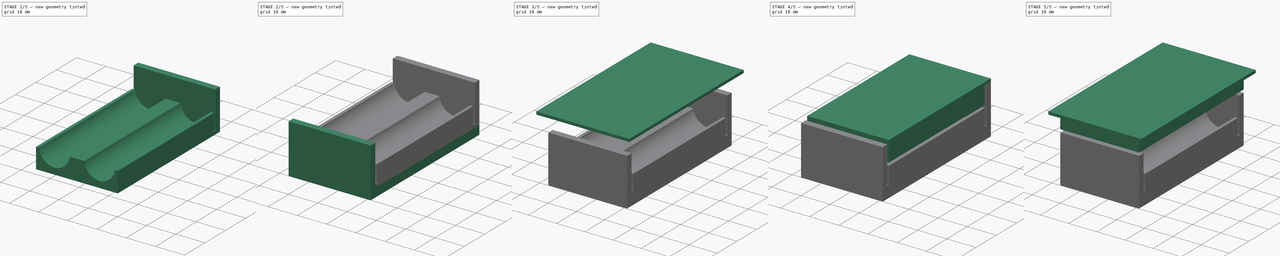
[diagram: build sequence overview — one tinted view per stage of 5, left to right]
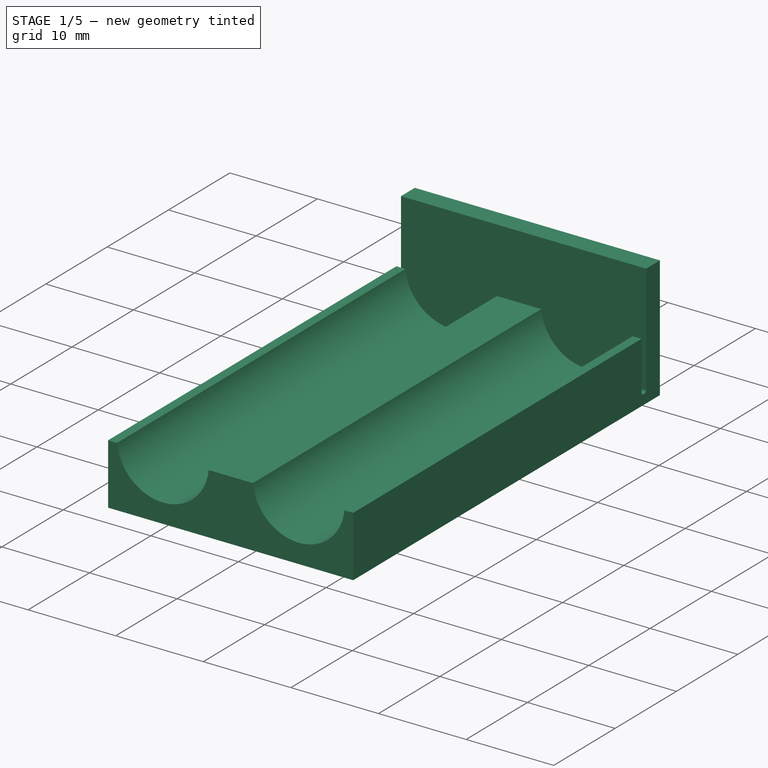
[diagram: stage 1 of 5 — iso view after this stage's code; geometry added in this stage tinted green]
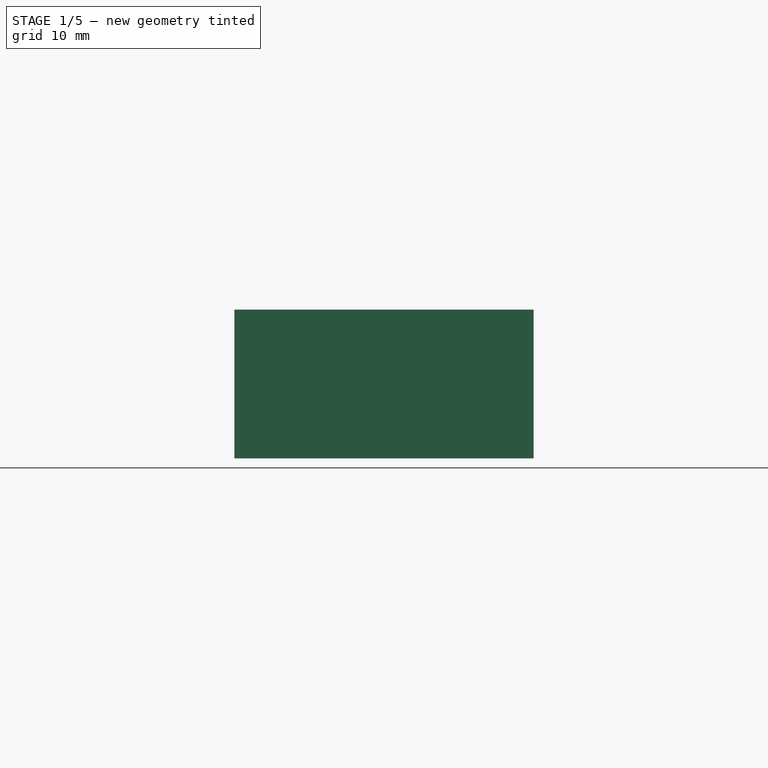
[diagram: stage 1 of 5 — front view after this stage's code; geometry added in this stage tinted green]
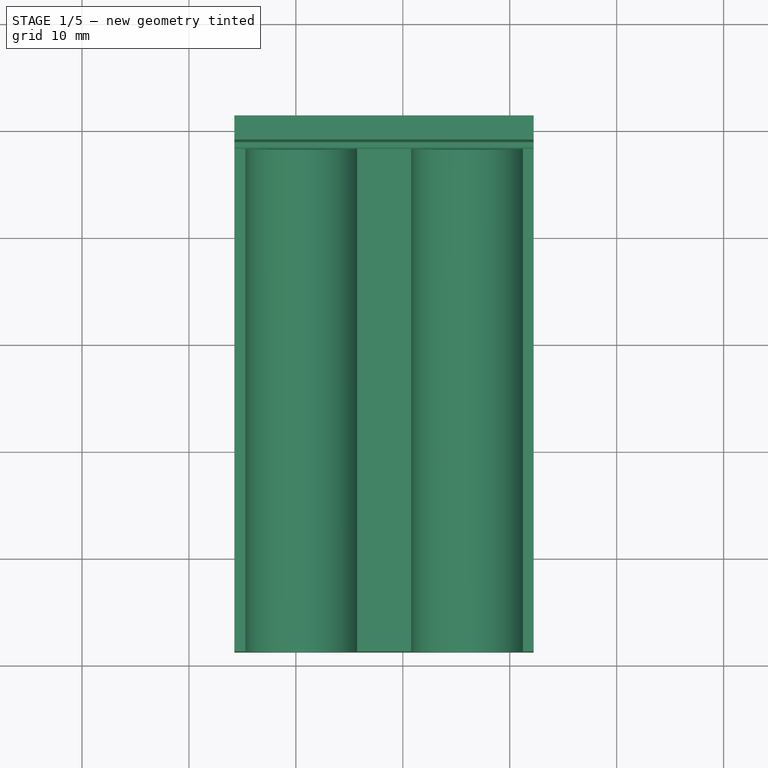
[diagram: stage 1 of 5 — top view after this stage's code; geometry added in this stage tinted green]
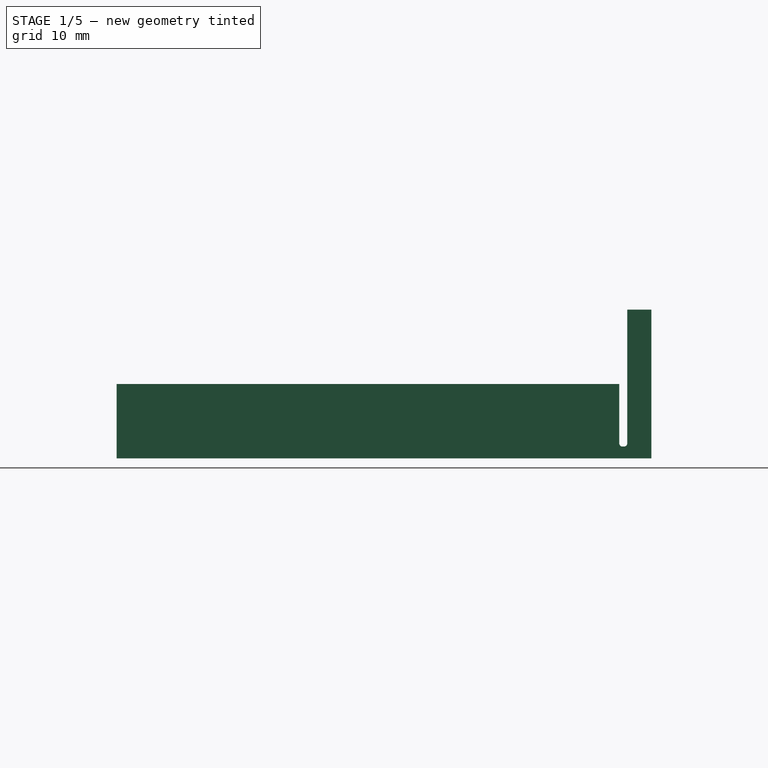
[diagram: stage 1 of 5 — right view after this stage's code; geometry added in this stage tinted green]
FCSTD DOCUMENT  (FreeCAD 0.19RUnknown)
Label: Option_2
License: All rights reserved
LicenseURL: http://en.wikipedia.org/wiki/All_rights_reserved
objects: Sketcher::SketchObject×23, PartDesign::Pad×11, PartDesign::Pocket×6, PartDesign::ShapeBinder×6, PartDesign::Body×4, PartDesign::Plane×3, PartDesign::Fillet×2
note: 74 computed .brp shape members not serialized (recipe doc carries the construction recipe); baked Part::Feature solids carry a one-line shape summary decoded from their .brp

FEATURE [Sketcher::SketchObject] Sketch006
  ExternalGeometry = -> [Pad003]
  FullyConstrained = true
  MapMode = 5
  Placement = pos=(-5e-16,-15.25,-6) rot=(0,1,0;3.14159rad)
  Support = -> [Pad003]
  sketch-geometry (4):
    g0: LineSegment StartX=-22.25 StartY=26.5 StartZ=0 EndX=5.75 EndY=26.5 EndZ=0
    g1: LineSegment StartX=5.75 StartY=26.5 StartZ=0 EndX=5.75 EndY=24.25 EndZ=0
    g2: LineSegment StartX=5.75 StartY=24.25 StartZ=0 EndX=-22.25 EndY=24.25 EndZ=0
    g3: LineSegment StartX=-22.25 StartY=24.25 StartZ=0 EndX=-22.25 EndY=26.5 EndZ=0
  constraints (10):
    c: Coincident(g0,g1)
    c: Coincident(g1,g2)
    c: Coincident(g2,g3)
    c: Coincident(g3,g0)
    c: Horizontal(g2)
    c: Vertical(g1)
    c: Vertical(g3)
    c: Coincident(g0,g-3)
    c: Coincident(g0,g-3)
    c: DistanceY(g-4,g2) = 0.75
FEATURE [PartDesign::ShapeBinder] CopyPad003
  Placement = pos=(0,-15.25,5.9e-15) rot=(0,0.707107,0.707107;3.14159rad)
  TraceSupport = false
FEATURE [PartDesign::Plane] DatumPlane001
  AttachmentOffset = pos=(0,0,-23.5) rot=(0,0,1;0rad)
  Length = 60
  MapMode = 5
  Placement = pos=(0,-15.25,5.1e-15) rot=(0,0.707107,0.707107;3.14159rad)
  ResizeMode = 0
  Support = -> [CopyPad003]
  Width = 60
FEATURE [Sketcher::SketchObject] Sketch007
  ExternalGeometry = -> [CopyPad003]
  FullyConstrained = false
  MapMode = 5
  Placement = pos=(0,-15.25,5.1e-15) rot=(0,0.707107,0.707107;3.14159rad)
  Support = -> [DatumPlane001]
  sketch-geometry (12):
    g0: ArcOfCircle CenterX=-16 CenterY=-12.5 CenterZ=0 NormalX=0 NormalY=0 NormalZ=1 AngleXU=0 Radius=5.25 StartAngle=3.23698 EndAngle=6.1878
    g1: ArcOfCircle CenterX=-0.5 CenterY=-12.5 CenterZ=0 NormalX=0 NormalY=0 NormalZ=1 AngleXU=0 Radius=5.25 StartAngle=3.23698 EndAngle=6.1878
    g2: LineSegment StartX=5.75 StartY=-17.9244 StartZ=0 EndX=5.75 EndY=-19.9524 EndZ=0
    g3: LineSegment StartX=5.75 StartY=-19.9524 StartZ=0 EndX=-22.2336 EndY=-19.9524 EndZ=0
    g4: LineSegment StartX=-22.2336 StartY=-19.9524 StartZ=0 EndX=-22.2336 EndY=-17.75 EndZ=0
    g5: LineSegment StartX=5.75 StartY=-17.9244 StartZ=0 EndX=5.75 EndY=-13 EndZ=0
    g6: LineSegment StartX=5.75 StartY=-13 StartZ=0 EndX=4.72614 EndY=-13 EndZ=0
    g7: LineSegment StartX=-22.2336 StartY=-13 StartZ=0 EndX=-22.2336 EndY=-17.75 EndZ=0
    g8: LineSegment StartX=-22.25 StartY=-6 StartZ=0 EndX=5.75 EndY=-6 EndZ=0
    g9: LineSegment StartX=5.75 StartY=-12 StartZ=0 EndX=5.75 EndY=-13 EndZ=0
    g10: LineSegment StartX=-21.2261 StartY=-13 StartZ=0 EndX=-22.2336 EndY=-13 EndZ=0
    g11: LineSegment StartX=-5.72614 StartY=-13 StartZ=0 EndX=-10.7739 EndY=-13 EndZ=0
  constraints (28):
    c: Coincident(g0,g-4)
    c: PointOnObject(g-4,g0)
    c: Coincident(g1,g-5)
    c: PointOnObject(g-5,g1)
    c: Coincident(g2,g3)
    c: Coincident(g3,g4)
    c: Horizontal(g3)
    c: Vertical(g2)
    c: Vertical(g4)
    c: Coincident(g5,g6)
    c: Coincident(g10,g7)
    c: Horizontal(g6)
    c: Vertical(g7)
    c: Coincident(g8,g-7)
    c: Coincident(g8,g-8)
    c: Vertical(g5)
    c: Coincident(g9,g-8)
    c: Coincident(g9,g5)
    c: Vertical(g9)
    c: DistanceY(g10,g-7) = 1
    c: Coincident(g11,g0)
    c: Coincident(g10,g0)
    c: Tangent(g6,g10)
    c: Tangent(g6,g11)
    c: Coincident(g1,g11)
    c: Coincident(g1,g6)
    c: Coincident(g4,g7)
    c: Coincident(g5,g2)
FEATURE [PartDesign::Pad] Pad004
  Direction = (1,1,1)
  Length = 47
  Length2 = 100
  Midplane = true
  Placement = pos=(0,-15.25,5.1e-15) rot=(0,0.707107,0.707107;3.14159rad)
  Profile = -> Sketch007
  Type = 0
FEATURE [Sketcher::SketchObject] Sketch008
  ExternalGeometry = -> [Pad004]
  FullyConstrained = false
  MapMode = 5
  Placement = pos=(-1e-15,8.25,1.3e-15) rot=(0,0.707107,0.707107;3.14159rad)
  Support = -> [Pad004]
  sketch-geometry (5):
    g0: LineSegment StartX=-22.2336 StartY=-19.9524 StartZ=0 EndX=5.75 EndY=-19.9524 EndZ=0
    g1: LineSegment StartX=5.75 StartY=-19.9524 StartZ=0 EndX=5.75 EndY=-18.85 EndZ=0
    g2: LineSegment StartX=5.75 StartY=-18.85 StartZ=0 EndX=-22.2336 EndY=-18.85 EndZ=0
    g3: LineSegment StartX=-22.2336 StartY=-18.85 StartZ=0 EndX=-22.2336 EndY=-19.9524 EndZ=0
    g4: LineSegment StartX=-7.95901 StartY=-17.75 StartZ=0 EndX=-21.0548 EndY=-17.75 EndZ=0
  constraints (12):
    c: Coincident(g0,g1)
    c: Coincident(g1,g2)
    c: Coincident(g2,g3)
    c: Coincident(g3,g0)
    c: Horizontal(g2)
    c: Vertical(g1)
    c: Vertical(g3)
    c: Coincident(g0,g-3)
    c: Coincident(g-3,g0)
    c: Horizontal(g4)
    c: Tangent(g-4,g4)
    c: DistanceY(g2,g4) = 1.1
FEATURE [PartDesign::Pad] Pad005
  BaseFeature = -> Pad004
  Direction = (1,1,1)
  Length = 3
  Length2 = 100
  Placement = pos=(0,-15.25,5.1e-15) rot=(0,0.707107,0.707107;3.14159rad)
  Profile = -> Sketch008
  Type = 0
FEATURE [Sketcher::SketchObject] Sketch009
  ExternalGeometry = -> [Pad005]
  FullyConstrained = true
  MapMode = 5
  Placement = pos=(2.7e-15,-15.25,-18.85) rot=(0,0,1;0rad)
  Support = -> [Pad005]
  sketch-geometry (4):
    g0: LineSegment StartX=-5.75 StartY=26.5 StartZ=0 EndX=22.2336 EndY=26.5 EndZ=0
    g1: LineSegment StartX=22.2336 StartY=26.5 StartZ=0 EndX=22.2336 EndY=24.25 EndZ=0
    g2: LineSegment StartX=22.2336 StartY=24.25 StartZ=0 EndX=-5.75 EndY=24.25 EndZ=0
    g3: LineSegment StartX=-5.75 StartY=24.25 StartZ=0 EndX=-5.75 EndY=26.5 EndZ=0
  constraints (10):
    c: Coincident(g0,g1)
    c: Coincident(g1,g2)
    c: Coincident(g2,g3)
    c: Coincident(g3,g0)
    c: Horizontal(g2)
    c: Vertical(g1)
    c: Vertical(g3)
    c: Coincident(g0,g-4)
    c: Coincident(g0,g-3)
    c: DistanceY(g-3,g1) = 0.75
FEATURE [PartDesign::Pad] Pad006
  BaseFeature = -> Pad005
  Direction = (1,1,1)
  Length = 12.8
  Length2 = 100
  Placement = pos=(0,-15.25,5.1e-15) rot=(0,0.707107,0.707107;3.14159rad)
  Profile = -> Sketch009
  Type = 0
FEATURE [PartDesign::Fillet] Fillet
  Base = -> Pad006 [Edge19,Edge35]
  BaseFeature = -> Pad006
  Placement = pos=(0,-15.25,5.1e-15) rot=(0,0.707107,0.707107;3.14159rad)
  Radius = 0.3
  SupportTransform = false
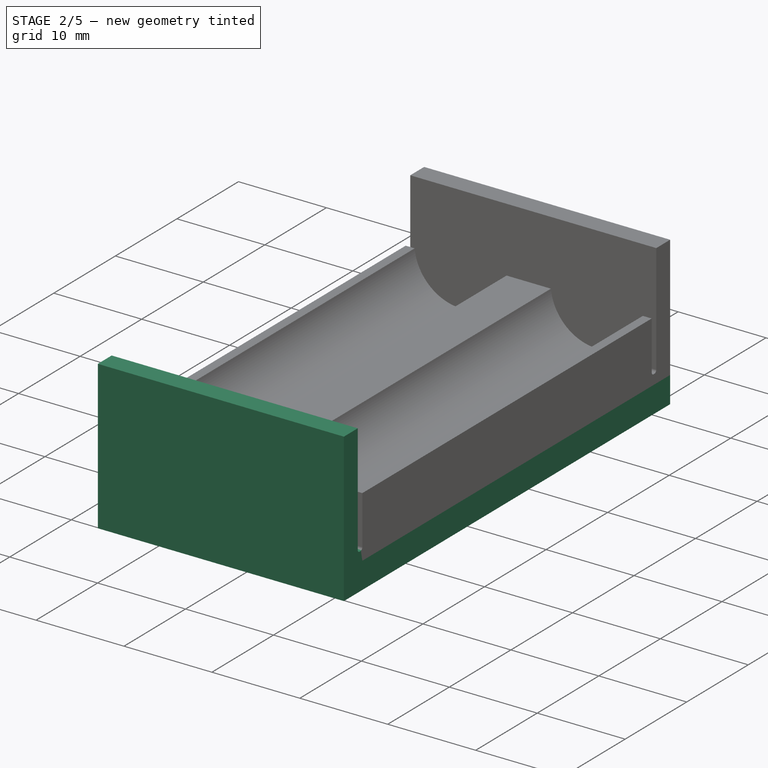
[diagram: stage 2 of 5 — iso view after this stage's code; geometry added in this stage tinted green]
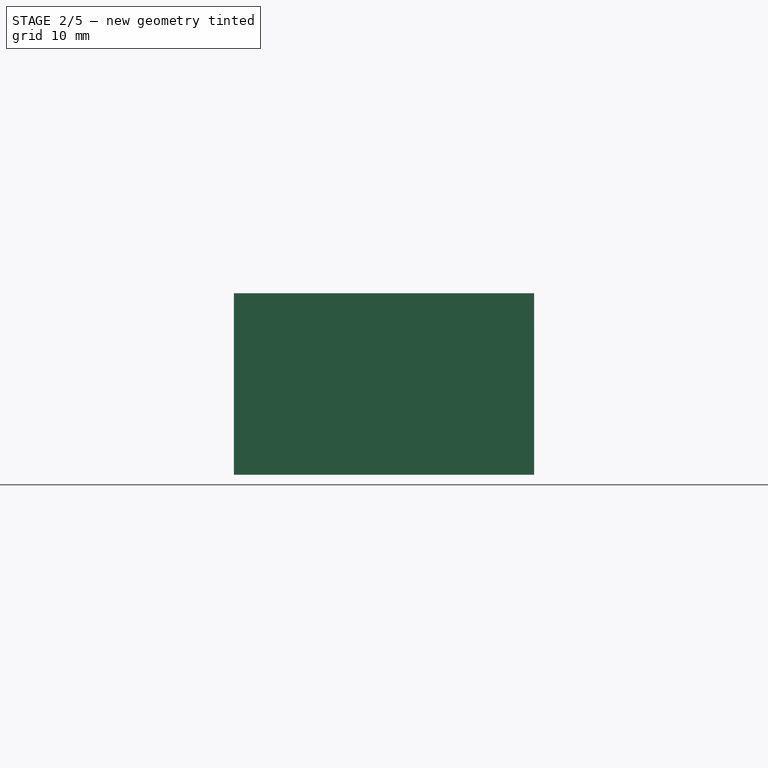
[diagram: stage 2 of 5 — front view after this stage's code; geometry added in this stage tinted green]
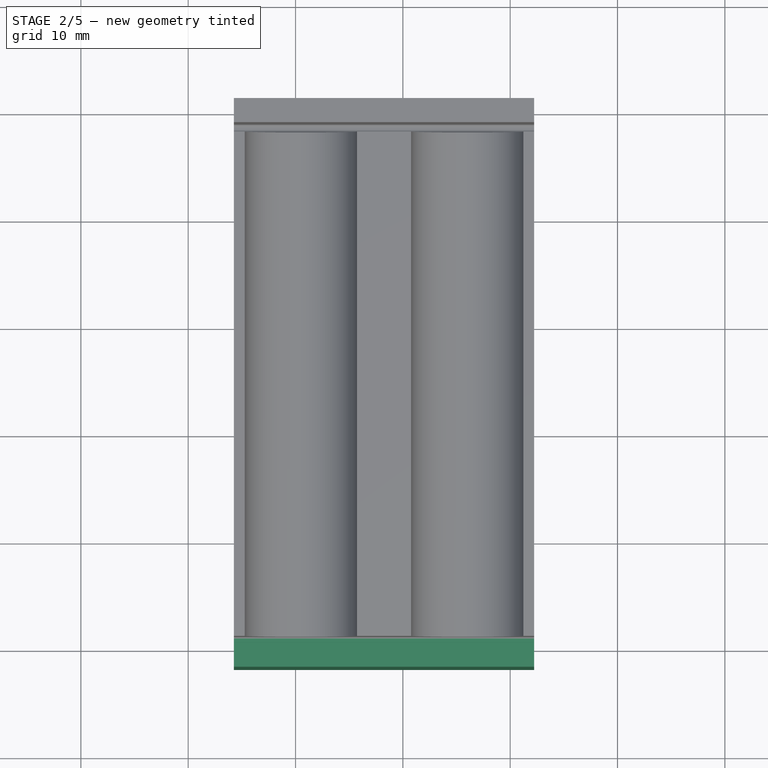
[diagram: stage 2 of 5 — top view after this stage's code; geometry added in this stage tinted green]
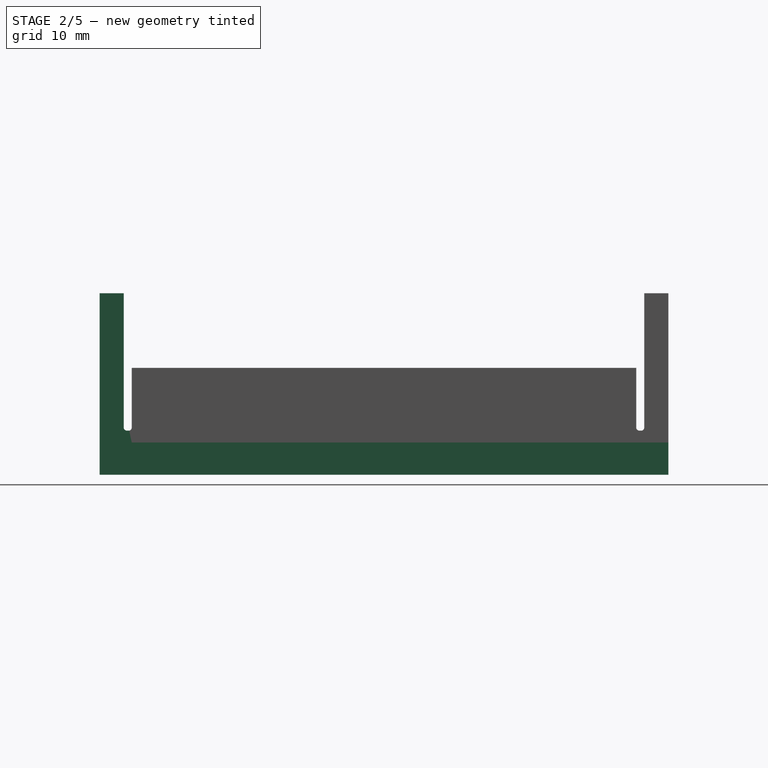
[diagram: stage 2 of 5 — right view after this stage's code; geometry added in this stage tinted green]
FEATURE [Sketcher::SketchObject] Sketch010
  ExternalGeometry = -> [Fillet]
  FullyConstrained = true
  MapMode = 5
  Placement = pos=(-5.7e-15,-38.75,9e-15) rot=(0,-0.707107,0.707107;3.14159rad)
  Support = -> [Fillet]
  sketch-geometry (4):
    g0: LineSegment StartX=-22.2336 StartY=19.9524 StartZ=0 EndX=5.75 EndY=19.9524 EndZ=0
    g1: LineSegment StartX=5.75 StartY=19.9524 StartZ=0 EndX=5.75 EndY=18.85 EndZ=0
    g2: LineSegment StartX=5.75 StartY=18.85 StartZ=0 EndX=-22.2336 EndY=18.85 EndZ=0
    g3: LineSegment StartX=-22.2336 StartY=18.85 StartZ=0 EndX=-22.2336 EndY=19.9524 EndZ=0
  constraints (10):
    c: Coincident(g0,g1)
    c: Coincident(g1,g2)
    c: Coincident(g2,g3)
    c: Coincident(g3,g0)
    c: Horizontal(g0)
    c: Horizontal(g2)
    c: Vertical(g1)
    c: Vertical(g3)
    c: Coincident(g0,g-3)
    c: Coincident(g1,g-4)
FEATURE [PartDesign::Pad] Pad007
  BaseFeature = -> Fillet
  Direction = (1,1,1)
  Length = 3
  Length2 = 100
  Placement = pos=(0,-15.25,5.1e-15) rot=(0,0.707107,0.707107;3.14159rad)
  Profile = -> Sketch010
  Type = 0
FEATURE [Sketcher::SketchObject] Sketch011
  ExternalGeometry = -> [Pad007]
  FullyConstrained = true
  MapMode = 5
  Placement = pos=(2.7e-15,-15.25,-18.85) rot=(0,0,1;0rad)
  Support = -> [Pad007]
  sketch-geometry (4):
    g0: LineSegment StartX=22.2336 StartY=-26.5 StartZ=0 EndX=-5.75 EndY=-26.5 EndZ=0
    g1: LineSegment StartX=-5.75 StartY=-26.5 StartZ=0 EndX=-5.75 EndY=-24.25 EndZ=0
    g2: LineSegment StartX=-5.75 StartY=-24.25 StartZ=0 EndX=22.2336 EndY=-24.25 EndZ=0
    g3: LineSegment StartX=22.2336 StartY=-24.25 StartZ=0 EndX=22.2336 EndY=-26.5 EndZ=0
  constraints (10):
    c: Coincident(g0,g1)
    c: Coincident(g1,g2)
    c: Coincident(g2,g3)
    c: Coincident(g3,g0)
    c: Horizontal(g2)
    c: Vertical(g1)
    c: Vertical(g3)
    c: Coincident(g0,g-3)
    c: Coincident(g0,g-3)
    c: DistanceY(g2,g-4) = 0.75
FEATURE [PartDesign::Pad] Pad008
  BaseFeature = -> Pad007
  Direction = (1,1,1)
  Length = 12.8
  Length2 = 100
  Placement = pos=(0,-15.25,5.1e-15) rot=(0,0.707107,0.707107;3.14159rad)
  Profile = -> Sketch011
  Type = 0
FEATURE [PartDesign::Fillet] Fillet001
  Base = -> Pad008 [Edge67,Edge48]
  BaseFeature = -> Pad008
  Placement = pos=(0,-15.25,5.1e-15) rot=(0,0.707107,0.707107;3.14159rad)
  Radius = 0.3
  SupportTransform = false
FEATURE [PartDesign::Body] Body  label="base"
  Group = -> [Sketch,Sketch001,Pad,Sketch002,Pad001,Sketch003,Pocket,ShapeBinder001,Sketch015,Pocket003]
  Origin = -> Origin
  Tip = -> Pocket003
FEATURE [Sketcher::SketchObject] Sketch016
  FullyConstrained = false
  MapMode = 5
  Support = -> [XY_Plane002]
  sketch-geometry (28):
    g0: LineSegment StartX=0 StartY=0 StartZ=0 EndX=17.5 EndY=0 EndZ=0
    g1: LineSegment StartX=17.5 StartY=0 StartZ=0 EndX=17.5 EndY=-25 EndZ=0
    g2: LineSegment StartX=17.5 StartY=-25 StartZ=0 EndX=0 EndY=-25 EndZ=0
    g3: LineSegment StartX=0 StartY=-25 StartZ=0 EndX=0 EndY=0 EndZ=0
    g4: LineSegment StartX=19 StartY=-25 StartZ=0 EndX=21.5 EndY=-25 EndZ=0
    g5: LineSegment StartX=21.5 StartY=-25 StartZ=0 EndX=21.5 EndY=5 EndZ=0
    g6: LineSegment StartX=21.5 StartY=5 StartZ=0 EndX=19 EndY=5 EndZ=0
    g7: LineSegment StartX=19 StartY=5 StartZ=0 EndX=19 EndY=-25 EndZ=0
    g8: LineSegment StartX=-19.0598 StartY=-25 StartZ=0 EndX=42.6393 EndY=-25 EndZ=0
    g9: LineSegment StartX=-5 StartY=5 StartZ=0 EndX=-2.5 EndY=5 EndZ=0
    g10: LineSegment StartX=-2.5 StartY=5 StartZ=0 EndX=-2.5 EndY=-25 EndZ=0
    g11: LineSegment StartX=-2.5 StartY=-25 StartZ=0 EndX=-5 EndY=-25 EndZ=0
    g12: LineSegment StartX=-5 StartY=-25 StartZ=0 EndX=-5 EndY=5 EndZ=0
    g13: LineSegment StartX=-6.25 StartY=11.75 StartZ=0 EndX=22.75 EndY=11.75 EndZ=0
    g14: LineSegment StartX=22.75 StartY=11.75 StartZ=0 EndX=22.75 EndY=-42.25 EndZ=0
    g15: LineSegment StartX=22.75 StartY=-42.25 StartZ=0 EndX=-6.25 EndY=-42.25 EndZ=0
    g16: LineSegment StartX=-6.25 StartY=-42.25 StartZ=0 EndX=-6.25 EndY=11.75 EndZ=0
    g17: LineSegment StartX=8.75 StartY=-10.0044 StartZ=0 EndX=8.75 EndY=18.0443 EndZ=0
    g18: LineSegment StartX=-2.25 StartY=-25.25 StartZ=0 EndX=18.75 EndY=-25.25 EndZ=0
    g19: LineSegment StartX=18.75 StartY=-25.25 StartZ=0 EndX=18.75 EndY=-41.25 EndZ=0
    g20: LineSegment StartX=18.75 StartY=-41.25 StartZ=0 EndX=-2.25 EndY=-41.25 EndZ=0
    g21: LineSegment StartX=-2.25 StartY=-41.25 StartZ=0 EndX=-2.25 EndY=-25.25 EndZ=0
    g22: LineSegment StartX=8.25 StartY=15.1276 StartZ=0 EndX=8.25 EndY=-58.3752 EndZ=0
    g23: LineSegment StartX=-1.25 StartY=-26.1668 StartZ=0 EndX=-1.25 EndY=-32.5887 EndZ=0
    g24: LineSegment StartX=-3.25 StartY=-26.25 StartZ=0 EndX=22.393 EndY=-26.25 EndZ=0
    g25: Circle CenterX=0.467721 CenterY=-27.95 CenterZ=0 NormalX=0 NormalY=0 NormalZ=1 AngleXU=0 Radius=1.7
    g26: LineSegment StartX=17.75 StartY=-32.1242 StartZ=0 EndX=17.75 EndY=-25.8602 EndZ=0
    g27: Circle CenterX=16.05 CenterY=-27.95 CenterZ=0 NormalX=0 NormalY=0 NormalZ=1 AngleXU=0 Radius=1.7
  constraints (76):
    c: Coincident(g0,g1)
    c: Coincident(g1,g2)
    c: Coincident(g2,g3)
    c: Coincident(g3,g0)
    c: Horizontal(g0)
    c: Horizontal(g2)
    c: Vertical(g1)
    c: Vertical(g3)
    c: Coincident(g0,g-1)
    c: DistanceX(g0,g0) = 17.5
    c: DistanceY(g3,g3) = 25
    c: Coincident(g4,g5)
    c: Coincident(g5,g6)
    c: Coincident(g6,g7)
    c: Coincident(g7,g4)
    c: Horizontal(g4)
    c: Horizontal(g6)
    c: Vertical(g5)
    c: Vertical(g7)
    c: Horizontal(g8)
    c: PointOnObject(g2,g8)
    c: PointOnObject(g4,g8)
    c: DistanceX(g1,g4) = 4
    c: DistanceX(g4,g4) = 2.5
    c: Coincident(g9,g10)
    c: Coincident(g10,g11)
    c: Coincident(g11,g12)
    c: Coincident(g12,g9)
    c: Horizontal(g9)
    c: Horizontal(g11)
    c: Vertical(g10)
    c: Vertical(g12)
    c: PointOnObject(g11,g8)
    c: DistanceX(g11,g10) = 2.5
    c: DistanceX(g11,g2) = 5
    c: DistanceY(g0,g9) = 5
    c: DistanceY(g0,g6) = 5
    c: Coincident(g13,g14)
    c: Coincident(g14,g15)
    c: Coincident(g15,g16)
    c: Coincident(g16,g13)
    c: Horizontal(g13)
    c: Horizontal(g15)
    c: Vertical(g14)
    c: Vertical(g16)
    c: DistanceX(g13,g13) = 29
    c: Vertical(g17)
    c: DistanceX(g0,g17) = 8.75
    c: DistanceX(g13,g17) = 15
    c: DistanceY(g0,g13) = 11.75
    c: DistanceY(g14,g13) = 54
    c: Coincident(g18,g19)
    c: Coincident(g19,g20)
    c: Coincident(g20,g21)
    c: Coincident(g21,g18)
    c: Horizontal(g18)
    c: Horizontal(g20)
    c: Vertical(g19)
    c: Vertical(g21)
    c: DistanceX(g18,g18) = 21
    c: DistanceY(g21,g21) = 16
    c: Vertical(g22)
    c: DistanceX(g13,g22) = 14.5
    c: DistanceX(g18,g22) = 10.5
    c: DistanceY(g15,g20) = 1
    c: Vertical(g23)
    c: Horizontal(g24)
    c: DistanceX(g18,g23) = 1
    c: DistanceY(g24,g18) = 1
    c: Diameter(g25) = 3.4
    c: Tangent(g25,g24)
    c: Vertical(g26)
    c: DistanceX(g26,g18) = 1
    c: Tangent(g27,g24)
    c: Tangent(g27,g26)
    c: Diameter(g27) = 3.4
FEATURE [Sketcher::SketchObject] Sketch017
  ExternalGeometry = -> [Sketch016]
  FullyConstrained = true
  MapMode = 5
  Placement = pos=(1.4e-14,-15.25,-19.9524) rot=(0,1,0;3.14159rad)
  Support = -> [Fillet001]
  sketch-geometry (4):
    g0: LineSegment StartX=-17.5 StartY=15.25 StartZ=0 EndX=0 EndY=15.25 EndZ=0
    g1: LineSegment StartX=0 StartY=15.25 StartZ=0 EndX=0 EndY=-9.75 EndZ=0
    g2: LineSegment StartX=0 StartY=-9.75 StartZ=0 EndX=-17.5 EndY=-9.75 EndZ=0
    g3: LineSegment StartX=-17.5 StartY=-9.75 StartZ=0 EndX=-17.5 EndY=15.25 EndZ=0
  constraints (10):
    c: Coincident(g0,g1)
    c: Coincident(g1,g2)
    c: Coincident(g2,g3)
    c: Coincident(g3,g0)
    c: Horizontal(g0)
    c: Horizontal(g2)
    c: Vertical(g1)
    c: Vertical(g3)
    c: Coincident(g0,g-3)
    c: Coincident(g1,g-4)
FEATURE [Sketcher::SketchObject] Sketch018
  ExternalGeometry = -> [Fillet001]
  FullyConstrained = true
  MapMode = 5
  Placement = pos=(1.4e-14,-15.25,-19.9524) rot=(0,1,0;3.14159rad)
  Support = -> [Fillet001]
  sketch-geometry (4):
    g0: LineSegment StartX=-22.2336 StartY=-26.5 StartZ=0 EndX=5.75 EndY=-26.5 EndZ=0
    g1: LineSegment StartX=5.75 StartY=-26.5 StartZ=0 EndX=5.75 EndY=26.5 EndZ=0
    g2: LineSegment StartX=5.75 StartY=26.5 StartZ=0 EndX=-22.2336 EndY=26.5 EndZ=0
    g3: LineSegment StartX=-22.2336 StartY=26.5 StartZ=0 EndX=-22.2336 EndY=-26.5 EndZ=0
  constraints (10):
    c: Coincident(g0,g1)
    c: Coincident(g1,g2)
    c: Coincident(g2,g3)
    c: Coincident(g3,g0)
    c: Horizontal(g0)
    c: Horizontal(g2)
    c: Vertical(g1)
    c: Vertical(g3)
    c: Coincident(g0,g-3)
    c: Coincident(g1,g-4)
FEATURE [PartDesign::Pad] Pad010
  BaseFeature = -> Fillet001
  Direction = (1,1,1)
  Length = 3
  Length2 = 100
  Placement = pos=(0,-15.25,5.1e-15) rot=(0,0.707107,0.707107;3.14159rad)
  Profile = -> Sketch018
  Type = 0
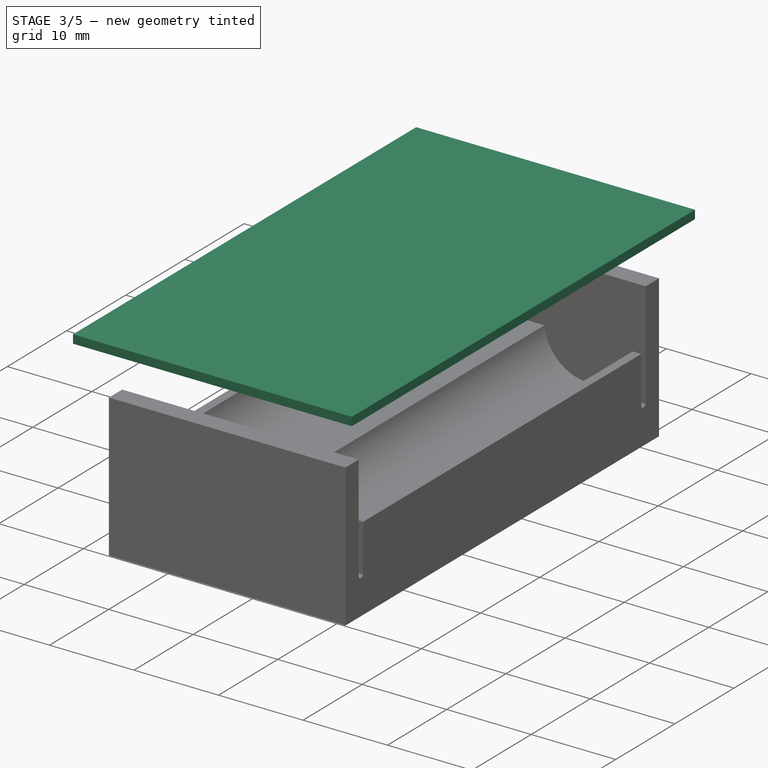
[diagram: stage 3 of 5 — iso view after this stage's code; geometry added in this stage tinted green]
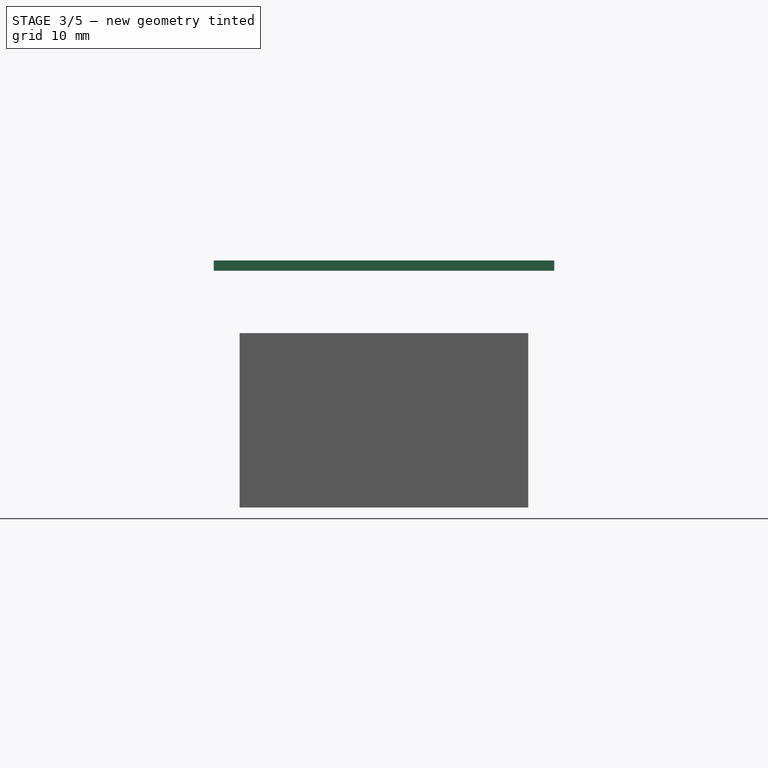
[diagram: stage 3 of 5 — front view after this stage's code; geometry added in this stage tinted green]
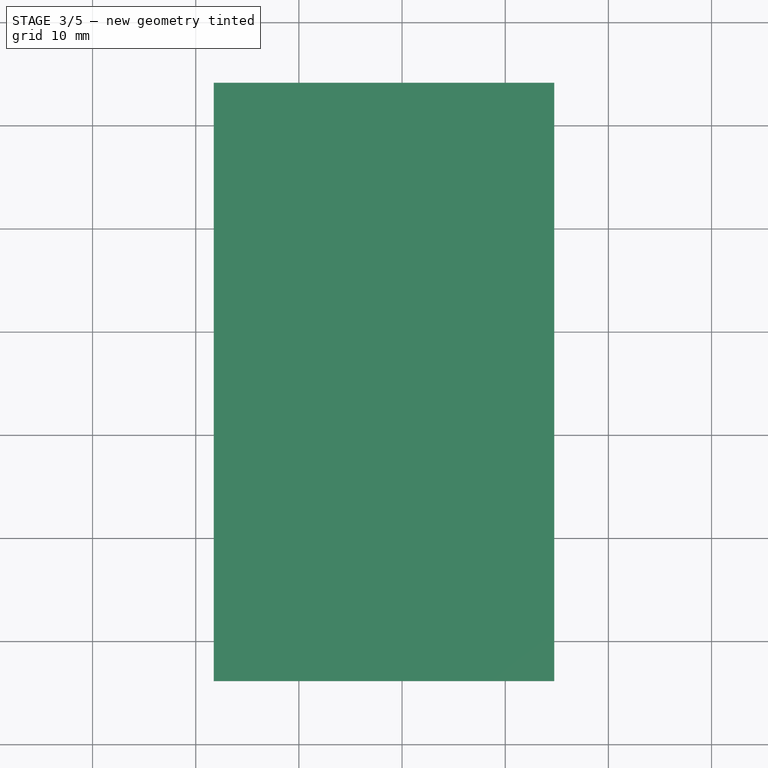
[diagram: stage 3 of 5 — top view after this stage's code; geometry added in this stage tinted green]
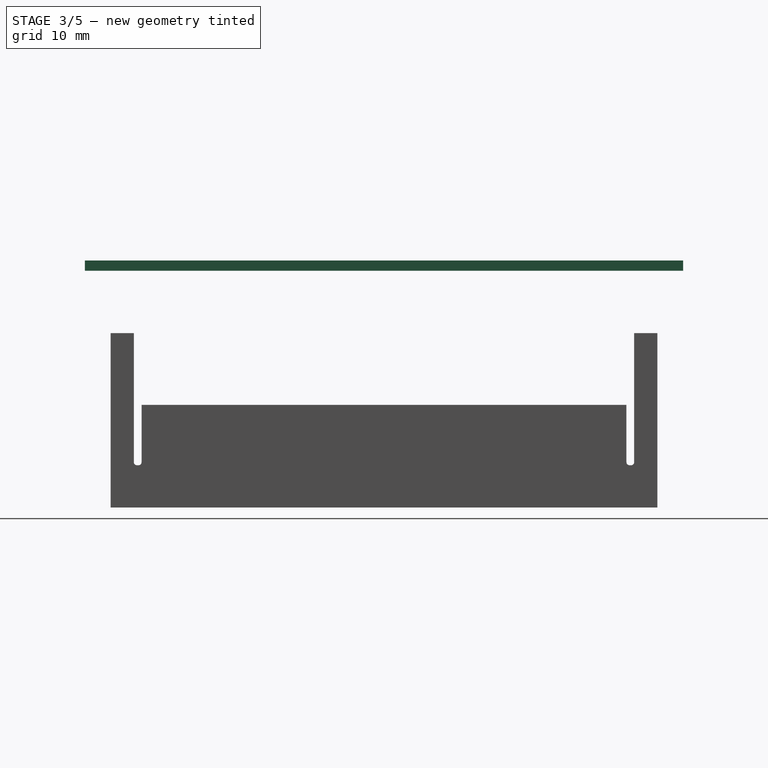
[diagram: stage 3 of 5 — right view after this stage's code; geometry added in this stage tinted green]
FEATURE [Sketcher::SketchObject] Sketch
  FullyConstrained = false
  MapMode = 5
  Support = -> [XY_Plane]
  sketch-geometry (28):
    g0: LineSegment StartX=0 StartY=0 StartZ=0 EndX=17.5 EndY=0 EndZ=0
    g1: LineSegment StartX=17.5 StartY=0 StartZ=0 EndX=17.5 EndY=-25 EndZ=0
    g2: LineSegment StartX=17.5 StartY=-25 StartZ=0 EndX=0 EndY=-25 EndZ=0
    g3: LineSegment StartX=0 StartY=-25 StartZ=0 EndX=0 EndY=0 EndZ=0
    g4: LineSegment StartX=19 StartY=-25 StartZ=0 EndX=21.5 EndY=-25 EndZ=0
    g5: LineSegment StartX=21.5 StartY=-25 StartZ=0 EndX=21.5 EndY=5 EndZ=0
    g6: LineSegment StartX=21.5 StartY=5 StartZ=0 EndX=19 EndY=5 EndZ=0
    g7: LineSegment StartX=19 StartY=5 StartZ=0 EndX=19 EndY=-25 EndZ=0
    g8: LineSegment StartX=-19.0598 StartY=-25 StartZ=0 EndX=42.6393 EndY=-25 EndZ=0
    g9: LineSegment StartX=-5 StartY=5 StartZ=0 EndX=-2.5 EndY=5 EndZ=0
    g10: LineSegment StartX=-2.5 StartY=5 StartZ=0 EndX=-2.5 EndY=-25 EndZ=0
    g11: LineSegment StartX=-2.5 StartY=-25 StartZ=0 EndX=-5 EndY=-25 EndZ=0
    g12: LineSegment StartX=-5 StartY=-25 StartZ=0 EndX=-5 EndY=5 EndZ=0
    g13: LineSegment StartX=-6.25 StartY=11.75 StartZ=0 EndX=22.75 EndY=11.75 EndZ=0
    g14: LineSegment StartX=22.75 StartY=11.75 StartZ=0 EndX=22.75 EndY=-42.25 EndZ=0
    g15: LineSegment StartX=22.75 StartY=-42.25 StartZ=0 EndX=-6.25 EndY=-42.25 EndZ=0
    g16: LineSegment StartX=-6.25 StartY=-42.25 StartZ=0 EndX=-6.25 EndY=11.75 EndZ=0
    g17: LineSegment StartX=8.75 StartY=-10.0044 StartZ=0 EndX=8.75 EndY=18.0443 EndZ=0
    g18: LineSegment StartX=-2.25 StartY=-25.25 StartZ=0 EndX=18.75 EndY=-25.25 EndZ=0
    g19: LineSegment StartX=18.75 StartY=-25.25 StartZ=0 EndX=18.75 EndY=-41.25 EndZ=0
    g20: LineSegment StartX=18.75 StartY=-41.25 StartZ=0 EndX=-2.25 EndY=-41.25 EndZ=0
    g21: LineSegment StartX=-2.25 StartY=-41.25 StartZ=0 EndX=-2.25 EndY=-25.25 EndZ=0
    g22: LineSegment StartX=8.25 StartY=15.1276 StartZ=0 EndX=8.25 EndY=-58.3752 EndZ=0
    g23: LineSegment StartX=-1.25 StartY=-26.1668 StartZ=0 EndX=-1.25 EndY=-32.5887 EndZ=0
    g24: LineSegment StartX=-3.25 StartY=-26.25 StartZ=0 EndX=22.393 EndY=-26.25 EndZ=0
    g25: Circle CenterX=0.467721 CenterY=-27.95 CenterZ=0 NormalX=0 NormalY=0 NormalZ=1 AngleXU=0 Radius=1.7
    g26: LineSegment StartX=17.75 StartY=-32.1242 StartZ=0 EndX=17.75 EndY=-25.8602 EndZ=0
    g27: Circle CenterX=16.05 CenterY=-27.95 CenterZ=0 NormalX=0 NormalY=0 NormalZ=1 AngleXU=0 Radius=1.7
  constraints (76):
    c: Coincident(g0,g1)
    c: Coincident(g1,g2)
    c: Coincident(g2,g3)
    c: Coincident(g3,g0)
    c: Horizontal(g0)
    c: Horizontal(g2)
    c: Vertical(g1)
    c: Vertical(g3)
    c: Coincident(g0,g-1)
    c: DistanceX(g0,g0) = 17.5
    c: DistanceY(g3,g3) = 25
    c: Coincident(g4,g5)
    c: Coincident(g5,g6)
    c: Coincident(g6,g7)
    c: Coincident(g7,g4)
    c: Horizontal(g4)
    c: Horizontal(g6)
    c: Vertical(g5)
    c: Vertical(g7)
    c: Horizontal(g8)
    c: PointOnObject(g2,g8)
    c: PointOnObject(g4,g8)
    c: DistanceX(g1,g4) = 4
    c: DistanceX(g4,g4) = 2.5
    c: Coincident(g9,g10)
    c: Coincident(g10,g11)
    c: Coincident(g11,g12)
    c: Coincident(g12,g9)
    c: Horizontal(g9)
    c: Horizontal(g11)
    c: Vertical(g10)
    c: Vertical(g12)
    c: PointOnObject(g11,g8)
    c: DistanceX(g11,g10) = 2.5
    c: DistanceX(g11,g2) = 5
    c: DistanceY(g0,g9) = 5
    c: DistanceY(g0,g6) = 5
    c: Coincident(g13,g14)
    c: Coincident(g14,g15)
    c: Coincident(g15,g16)
    c: Coincident(g16,g13)
    c: Horizontal(g13)
    c: Horizontal(g15)
    c: Vertical(g14)
    c: Vertical(g16)
    c: DistanceX(g13,g13) = 29
    c: Vertical(g17)
    c: DistanceX(g0,g17) = 8.75
    c: DistanceX(g13,g17) = 15
    c: DistanceY(g0,g13) = 11.75
    c: DistanceY(g14,g13) = 54
    c: Coincident(g18,g19)
    c: Coincident(g19,g20)
    c: Coincident(g20,g21)
    c: Coincident(g21,g18)
    c: Horizontal(g18)
    c: Horizontal(g20)
    c: Vertical(g19)
    c: Vertical(g21)
    c: DistanceX(g18,g18) = 21
    c: DistanceY(g21,g21) = 16
    c: Vertical(g22)
    c: DistanceX(g13,g22) = 14.5
    c: DistanceX(g18,g22) = 10.5
    c: DistanceY(g15,g20) = 1
    c: Vertical(g23)
    c: Horizontal(g24)
    c: DistanceX(g18,g23) = 1
    c: DistanceY(g24,g18) = 1
    c: Diameter(g25) = 3.4
    c: Tangent(g25,g24)
    c: Vertical(g26)
    c: DistanceX(g26,g18) = 1
    c: Tangent(g27,g24)
    c: Tangent(g27,g26)
    c: Diameter(g27) = 3.4
FEATURE [Sketcher::SketchObject] Sketch001
  ExternalGeometry = -> [Sketch]
  FullyConstrained = true
  MapMode = 5
  Support = -> [XY_Plane]
  sketch-geometry (4):
    g0: LineSegment StartX=-8.25 StartY=13.75 StartZ=0 EndX=24.75 EndY=13.75 EndZ=0
    g1: LineSegment StartX=24.75 StartY=13.75 StartZ=0 EndX=24.75 EndY=-44.25 EndZ=0
    g2: LineSegment StartX=24.75 StartY=-44.25 StartZ=0 EndX=-8.25 EndY=-44.25 EndZ=0
    g3: LineSegment StartX=-8.25 StartY=-44.25 StartZ=0 EndX=-8.25 EndY=13.75 EndZ=0
  constraints (14):
    c: Coincident(g0,g1)
    c: Coincident(g1,g2)
    c: Coincident(g2,g3)
    c: Coincident(g3,g0)
    c: Horizontal(g0)
    c: Horizontal(g2)
    c: Vertical(g1)
    c: Vertical(g3)
    c: DistanceX(g0,g-6) = 2
    c: DistanceX(g-5,g0) = 2
    c: DistanceX(g-3,g-3) = 29
    c: DistanceY(g-6,g0) = 2
    c: DistanceY(g2,g-6) = 2
    c: DistanceX(g2,g2) = 33
FEATURE [PartDesign::Pad] Pad
  Direction = (1,1,1)
  Length = 1
  Length2 = 100
  Profile = -> Sketch001
  Type = 0
FEATURE [Sketcher::SketchObject] Sketch019
  ExternalGeometry = -> [Sketch016]
  FullyConstrained = true
  MapMode = 5
  Placement = pos=(1.93e-14,-15.25,-22.9524) rot=(0,1,0;3.14159rad)
  Support = -> [Pad010]
  sketch-geometry (4):
    g0: LineSegment StartX=-17.5 StartY=15.25 StartZ=0 EndX=0 EndY=15.25 EndZ=0
    g1: LineSegment StartX=0 StartY=15.25 StartZ=0 EndX=0 EndY=-9.75 EndZ=0
    g2: LineSegment StartX=0 StartY=-9.75 StartZ=0 EndX=-17.5 EndY=-9.75 EndZ=0
    g3: LineSegment StartX=-17.5 StartY=-9.75 StartZ=0 EndX=-17.5 EndY=15.25 EndZ=0
  constraints (10):
    c: Coincident(g0,g1)
    c: Coincident(g1,g2)
    c: Coincident(g2,g3)
    c: Coincident(g3,g0)
    c: Horizontal(g0)
    c: Horizontal(g2)
    c: Vertical(g1)
    c: Vertical(g3)
    c: Coincident(g0,g-3)
    c: Coincident(g1,g-4)
FEATURE [PartDesign::Pocket] Pocket004
  BaseFeature = -> Pad010
  Length = 4
  Length2 = 100
  Placement = pos=(0,-15.25,5.1e-15) rot=(0,0.707107,0.707107;3.14159rad)
  Profile = -> Sketch019
  Type = 0
FEATURE [Sketcher::SketchObject] Sketch020
  ExternalGeometry = -> [Sketch016]
  FullyConstrained = true
  MapMode = 5
  Placement = pos=(2.25e-14,-15.25,-22.9524) rot=(0,1,0;3.14159rad)
  Support = -> [Pocket004]
  sketch-geometry (2):
    g0: Circle CenterX=-16.05 CenterY=-12.7 CenterZ=0 NormalX=0 NormalY=0 NormalZ=1 AngleXU=0 Radius=1
    g1: Circle CenterX=-0.467721 CenterY=-12.7 CenterZ=0 NormalX=0 NormalY=0 NormalZ=1 AngleXU=0 Radius=1
  constraints (4):
    c: Coincident(g0,g-3)
    c: Coincident(g1,g-4)
    c: Diameter(g0) = 2
    c: Diameter(g1) = 2
FEATURE [PartDesign::Pocket] Pocket005
  BaseFeature = -> Pocket004
  Length = 5
  Length2 = 100
  Placement = pos=(0,-15.25,5.1e-15) rot=(0,0.707107,0.707107;3.14159rad)
  Profile = -> Sketch020
  Type = 0
FEATURE [PartDesign::Body] Body002  label="battery_2"
  Group = -> [DatumPlane001,CopyPad003,Sketch007,Pad004,Sketch008,Pad005,Sketch009,Pad006,Fillet,Sketch010,Pad007,Sketch011,Pad008,Fillet001,Sketch016,Sketch017,Sketch018,Pad010,Sketch019,Pocket004,Sketch020,Pocket005]
  Origin = -> Origin002
  Tip = -> Pocket005
FEATURE [PartDesign::ShapeBinder] ShapeBinder002
  Placement = pos=(0,-15.25,5.1e-15) rot=(0,0.707107,0.707107;3.14159rad)
  Support = -> [Pocket005]
  TraceSupport = false
FEATURE [PartDesign::Plane] DatumPlane002
  AttachmentOffset = pos=(0,0,2) rot=(0,0,1;0rad)
  Length = 61.7686
  MapMode = 5
  Placement = pos=(2.8e-14,-15.25,-24.9524) rot=(0,1,0;3.14159rad)
  ResizeMode = 0
  Support = -> [ShapeBinder002]
  Width = 81.0186
FEATURE [PartDesign::ShapeBinder] ShapeBinder003
  Support = -> [Pocket003]
  TraceSupport = false
FEATURE [Sketcher::SketchObject] Sketch021
  ExternalGeometry = -> [ShapeBinder002]
  FullyConstrained = true
  MapMode = 5
  Placement = pos=(2.8e-14,-15.25,-24.9524) rot=(0,1,0;3.14159rad)
  Support = -> [DatumPlane002]
FEATURE [PartDesign::ShapeBinder] ShapeBinder004
  Support = -> [Pocket003]
  TraceSupport = false
FEATURE [Sketcher::SketchObject] Sketch022
  FullyConstrained = true
  MapMode = 5
  Placement = pos=(2.8e-14,-15.25,-24.9524) rot=(0,1,0;3.14159rad)
  Support = -> [DatumPlane002]
FEATURE [PartDesign::Body] Body003  label="pokrywa"
  Group = -> [ShapeBinder003,DatumPlane002,ShapeBinder002,Sketch021,ShapeBinder004,Sketch022]
  Origin = -> Origin003
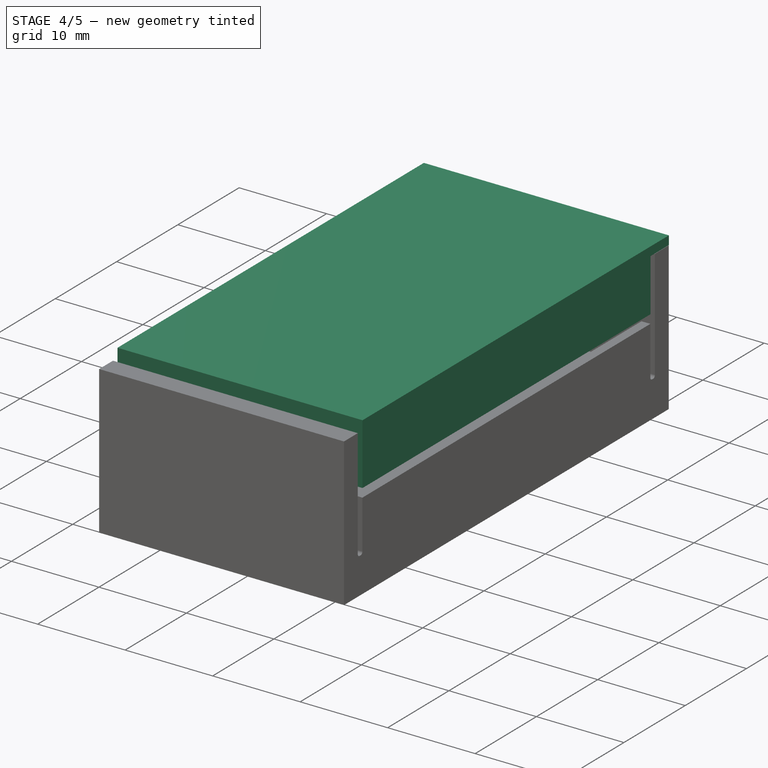
[diagram: stage 4 of 5 — iso view after this stage's code; geometry added in this stage tinted green]
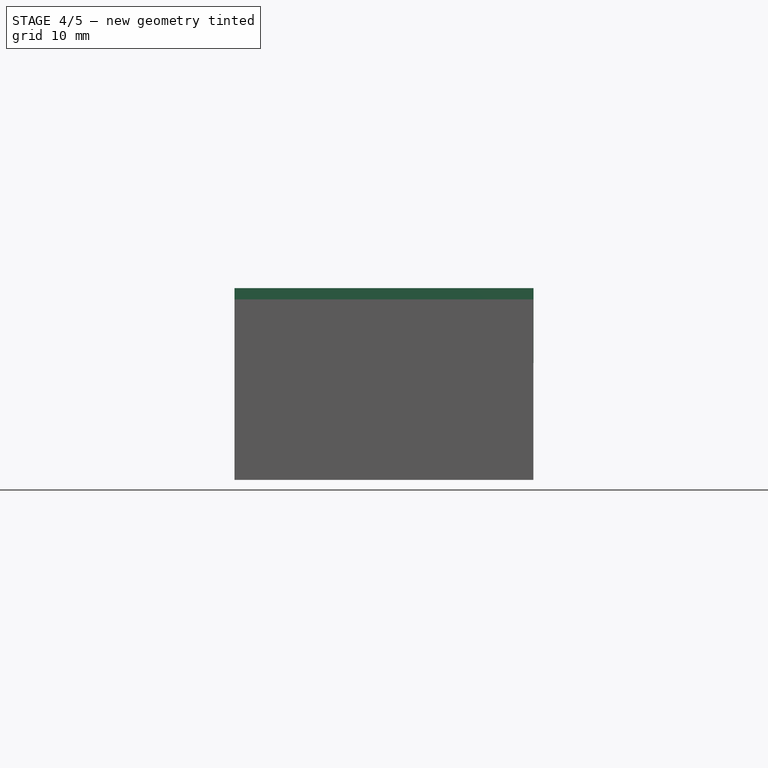
[diagram: stage 4 of 5 — front view after this stage's code; geometry added in this stage tinted green]
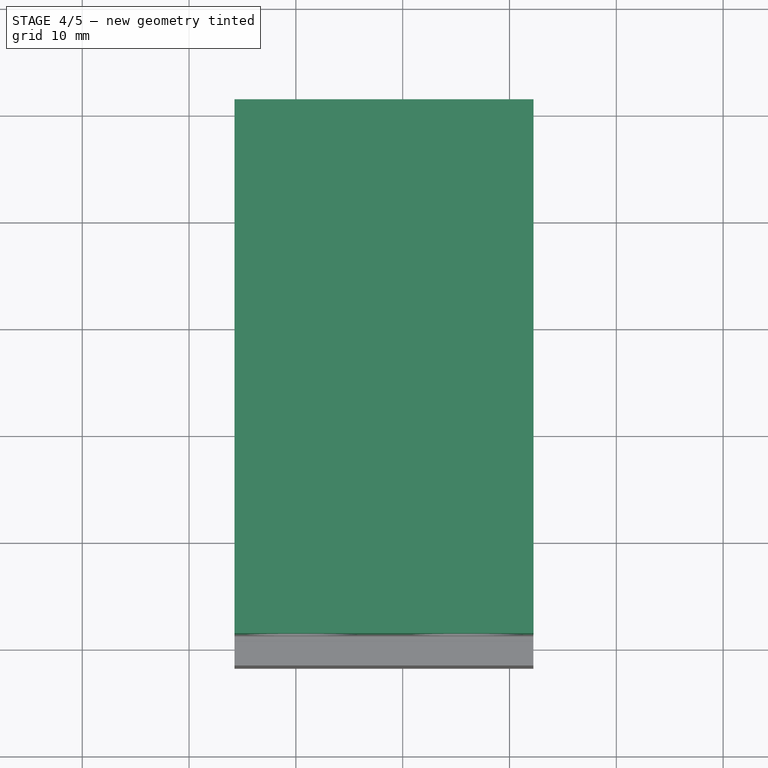
[diagram: stage 4 of 5 — top view after this stage's code; geometry added in this stage tinted green]
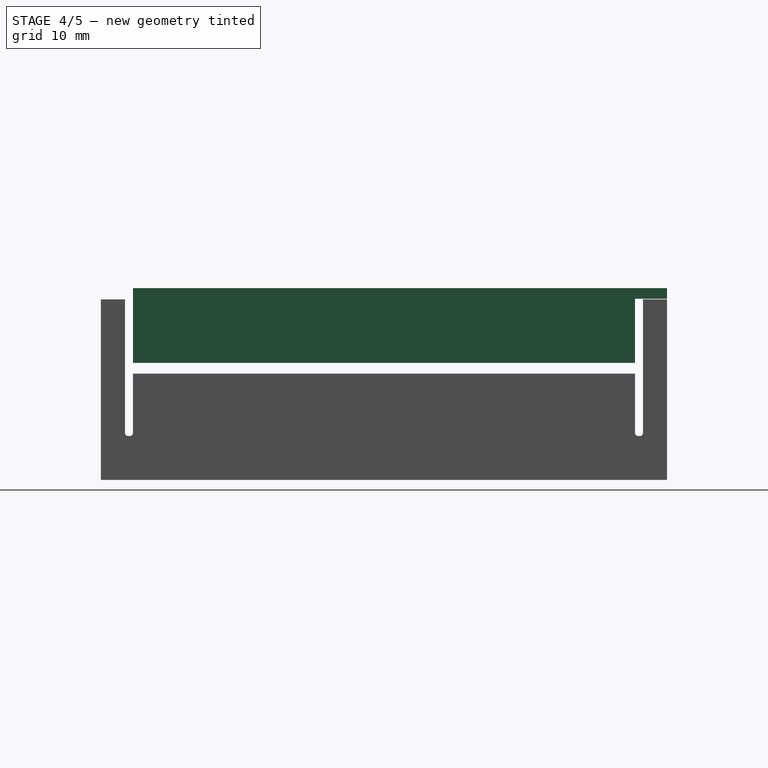
[diagram: stage 4 of 5 — right view after this stage's code; geometry added in this stage tinted green]
FEATURE [Sketcher::SketchObject] Sketch002
  ExternalGeometry = -> [Pad]
  FullyConstrained = true
  MapMode = 5
  Placement = pos=(0,0,0) rot=(1,0,0;3.14159rad)
  Support = -> [Pad]
  sketch-geometry (8):
    g0: Circle CenterX=-0.25 CenterY=36.25 CenterZ=0 NormalX=0 NormalY=0 NormalZ=1 AngleXU=0 Radius=5.5
    g1: Circle CenterX=16.75 CenterY=36.25 CenterZ=0 NormalX=0 NormalY=0 NormalZ=1 AngleXU=0 Radius=5.5
    g2: Circle CenterX=-0.25 CenterY=-5.75 CenterZ=0 NormalX=0 NormalY=0 NormalZ=1 AngleXU=0 Radius=5.5
    g3: Circle CenterX=16.75 CenterY=-5.75 CenterZ=0 NormalX=0 NormalY=0 NormalZ=1 AngleXU=0 Radius=5.5
    g4: LineSegment StartX=-5.75 StartY=41.75 StartZ=0 EndX=22.25 EndY=41.75 EndZ=0
    g5: LineSegment StartX=22.25 StartY=41.75 StartZ=0 EndX=22.25 EndY=-11.25 EndZ=0
    g6: LineSegment StartX=22.25 StartY=-11.25 StartZ=0 EndX=-5.75 EndY=-11.25 EndZ=0
    g7: LineSegment StartX=-5.75 StartY=-11.25 StartZ=0 EndX=-5.75 EndY=41.75 EndZ=0
  constraints (24):
    c: Diameter(g0) = 11
    c: DistanceY(g0,g-4) = 8
    c: DistanceX(g-4,g0) = 8
    c: Diameter(g1) = 11
    c: DistanceY(g1,g-5) = 8
    c: DistanceX(g1,g-5) = 8
    c: Diameter(g2) = 11
    c: DistanceX(g-6,g2) = 8
    c: DistanceY(g-6,g2) = 8
    c: DistanceY(g-6,g3) = 8
    c: DistanceX(g3,g-6) = 8
    c: Coincident(g4,g5)
    c: Coincident(g5,g6)
    c: Coincident(g6,g7)
    c: Coincident(g7,g4)
    c: Horizontal(g4)
    c: Horizontal(g6)
    c: Vertical(g5)
    c: Vertical(g7)
    c: Tangent(g2,g7)
    c: Tangent(g2,g6)
    c: Tangent(g0,g4)
    c: Tangent(g5,g1)
    c: Diameter(g3) = 11
FEATURE [PartDesign::Pad] Pad001
  BaseFeature = -> Pad
  Direction = (1,1,1)
  Length = 5
  Length2 = 100
  Profile = -> Sketch002
  Type = 0
FEATURE [Sketcher::SketchObject] Sketch003
  ExternalGeometry = -> [Pad001]
  FullyConstrained = true
  MapMode = 5
  Placement = pos=(0,0,-5) rot=(1,0,0;3.14159rad)
  Support = -> [Pad001]
  sketch-geometry (8):
    g0: Circle CenterX=0.25 CenterY=-5.25 CenterZ=0 NormalX=0 NormalY=0 NormalZ=1 AngleXU=0 Radius=6
    g1: Circle CenterX=16.25 CenterY=-5.25 CenterZ=0 NormalX=0 NormalY=0 NormalZ=1 AngleXU=0 Radius=6
    g2: Circle CenterX=0.25 CenterY=35.75 CenterZ=0 NormalX=0 NormalY=0 NormalZ=1 AngleXU=0 Radius=6
    g3: Circle CenterX=16.25 CenterY=35.75 CenterZ=0 NormalX=0 NormalY=0 NormalZ=1 AngleXU=0 Radius=6
    g4: Circle CenterX=0.25 CenterY=35.75 CenterZ=0 NormalX=0 NormalY=0 NormalZ=1 AngleXU=0 Radius=5.5
    g5: Circle CenterX=16.25 CenterY=35.75 CenterZ=0 NormalX=0 NormalY=0 NormalZ=1 AngleXU=0 Radius=5.5
    g6: Circle CenterX=0.25 CenterY=-5.25 CenterZ=0 NormalX=0 NormalY=0 NormalZ=1 AngleXU=0 Radius=5.5
    g7: Circle CenterX=16.25 CenterY=-5.25 CenterZ=0 NormalX=0 NormalY=0 NormalZ=1 AngleXU=0 Radius=5.5
  constraints (20):
    c: Diameter(g2) = 12
    c: Diameter(g3) = 12
    c: Diameter(g0) = 12
    c: Diameter(g1) = 12
    c: Tangent(g0,g-3)
    c: Tangent(g0,g-6)
    c: Tangent(g1,g-6)
    c: Tangent(g1,g-5)
    c: Tangent(g2,g-4)
    c: Tangent(g-3,g2)
    c: Tangent(g3,g-4)
    c: Tangent(g3,g-5)
    c: Coincident(g4,g2)
    c: Diameter(g4) = 11
    c: Coincident(g5,g3)
    c: Diameter(g5) = 11
    c: Coincident(g6,g0)
    c: Diameter(g6) = 11
    c: Coincident(g7,g1)
    c: Diameter(g7) = 11
FEATURE [PartDesign::Pocket] Pocket
  BaseFeature = -> Pad001
  Length = 5
  Length2 = 100
  Profile = -> Sketch003
  Type = 0
FEATURE [PartDesign::ShapeBinder] ShapeBinder
  Support = -> [Pocket]
  TraceSupport = false
FEATURE [PartDesign::Plane] DatumPlane
  AttachmentOffset = pos=(0,0,-26.5) rot=(0,0,1;0rad)
  Length = 60
  MapMode = 5
  Placement = pos=(0,-15.25,5.9e-15) rot=(0,0.707107,0.707107;3.14159rad)
  ResizeMode = 0
  Support = -> [ShapeBinder]
  Width = 60
FEATURE [Sketcher::SketchObject] Sketch004
  ExternalGeometry = -> [ShapeBinder]
  FullyConstrained = false
  MapMode = 5
  Placement = pos=(0,-15.25,5.9e-15) rot=(0,0.707107,0.707107;3.14159rad)
  Support = -> [DatumPlane]
  sketch-geometry (9):
    g0: LineSegment StartX=-22.25 StartY=-5 StartZ=0 EndX=5.75 EndY=-5 EndZ=0
    g1: LineSegment StartX=5.75 StartY=-5 StartZ=0 EndX=5.75 EndY=-12 EndZ=0
    g2: LineSegment StartX=5.75 StartY=-12 StartZ=0 EndX=4.72614 EndY=-12 EndZ=0
    g3: LineSegment StartX=-22.25 StartY=-12 StartZ=0 EndX=-22.25 EndY=-5 EndZ=0
    g4: ArcOfCircle CenterX=-16 CenterY=-12.5 CenterZ=0 NormalX=0 NormalY=0 NormalZ=1 AngleXU=0 Radius=5.25 StartAngle=0.0953827 EndAngle=3.04621
    g5: ArcOfCircle CenterX=-0.5 CenterY=-12.5 CenterZ=0 NormalX=0 NormalY=0 NormalZ=1 AngleXU=0 Radius=5.25 StartAngle=0.0953827 EndAngle=3.04621
    g6: LineSegment StartX=-8.25 StartY=-22.2327 StartZ=0 EndX=-8.25 EndY=3.5415 EndZ=0
    g7: LineSegment StartX=-21.2261 StartY=-12 StartZ=0 EndX=-22.25 EndY=-12 EndZ=0
    g8: LineSegment StartX=-5.72614 StartY=-12 StartZ=0 EndX=-10.7739 EndY=-12 EndZ=0
  constraints (25):
    c: Coincident(g0,g1)
    c: Coincident(g1,g2)
    c: Coincident(g7,g3)
    c: Coincident(g3,g0)
    c: Horizontal(g2)
    c: Vertical(g1)
    c: Vertical(g3)
    c: Coincident(g0,g-3)
    c: Coincident(g0,g-4)
    c: Diameter(g4) = 10.5
    c: Diameter(g5) = 10.5
    c: DistanceX(g4,g5) = 15.5
    c: DistanceY(g4,g0) = 7.5
    c: DistanceY(g5,g0) = 7.5
    c: Vertical(g6)
    c: DistanceX(g7,g6) = 14
    c: DistanceX(g7,g1) = 28
    c: DistanceX(g4,g6) = 7.75
    c: DistanceY(g4,g7) = 0.5
    c: Tangent(g2,g7)
    c: Coincident(g4,g8)
    c: Coincident(g4,g7)
    c: Coincident(g2,g5)
    c: Coincident(g8,g5)
    c: Tangent(g2,g8)
FEATURE [PartDesign::Pad] Pad002
  Direction = (1,1,1)
  Length = 47
  Length2 = 100
  Midplane = true
  Placement = pos=(0,-15.25,5.9e-15) rot=(0,0.707107,0.707107;3.14159rad)
  Profile = -> Sketch004
  Type = 0
FEATURE [Sketcher::SketchObject] Sketch005
  ExternalGeometry = -> [Pad002]
  FullyConstrained = true
  MapMode = 5
  Placement = pos=(-2e-15,8.25,-1e-16) rot=(0,0.707107,0.707107;3.14159rad)
  Support = -> [Pad002]
  sketch-geometry (4):
    g0: LineSegment StartX=-22.25 StartY=-5 StartZ=0 EndX=5.75 EndY=-5 EndZ=0
    g1: LineSegment StartX=5.75 StartY=-5 StartZ=0 EndX=5.75 EndY=-6 EndZ=0
    g2: LineSegment StartX=5.75 StartY=-6 StartZ=0 EndX=-22.25 EndY=-6 EndZ=0
    g3: LineSegment StartX=-22.25 StartY=-6 StartZ=0 EndX=-22.25 EndY=-5 EndZ=0
  constraints (11):
    c: Coincident(g0,g1)
    c: Coincident(g1,g2)
    c: Coincident(g2,g3)
    c: Coincident(g3,g0)
    c: Horizontal(g0)
    c: Horizontal(g2)
    c: Vertical(g1)
    c: Vertical(g3)
    c: Coincident(g0,g-5)
    c: PointOnObject(g1,g-6)
    c: DistanceY(g2,g0) = 1
FEATURE [PartDesign::Pad] Pad003
  BaseFeature = -> Pad002
  Direction = (1,1,1)
  Length = 3
  Length2 = 100
  Placement = pos=(0,-15.25,5.9e-15) rot=(0,0.707107,0.707107;3.14159rad)
  Profile = -> Sketch005
  Type = 0
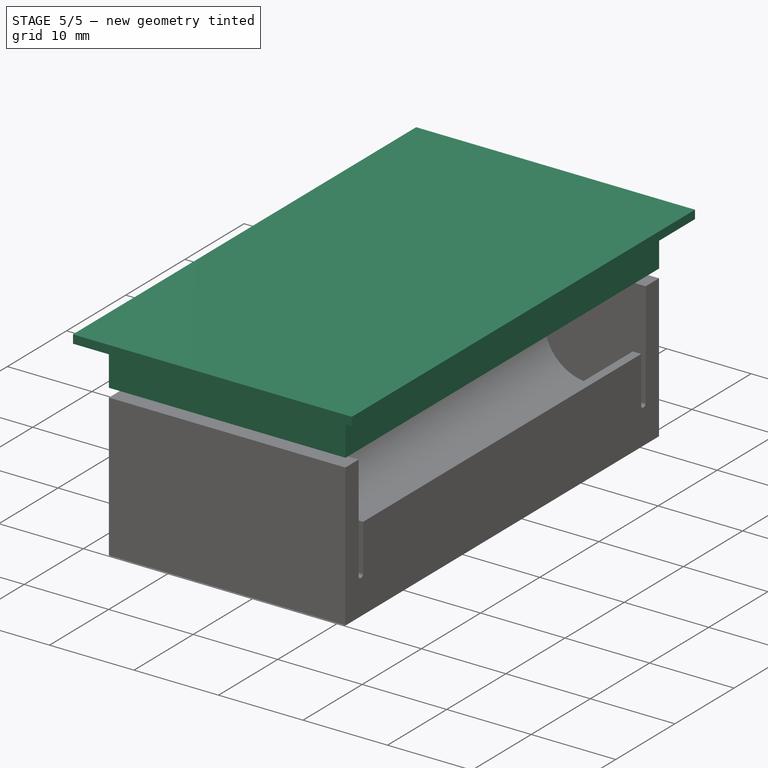
[diagram: stage 5 of 5 — iso view after this stage's code; geometry added in this stage tinted green]
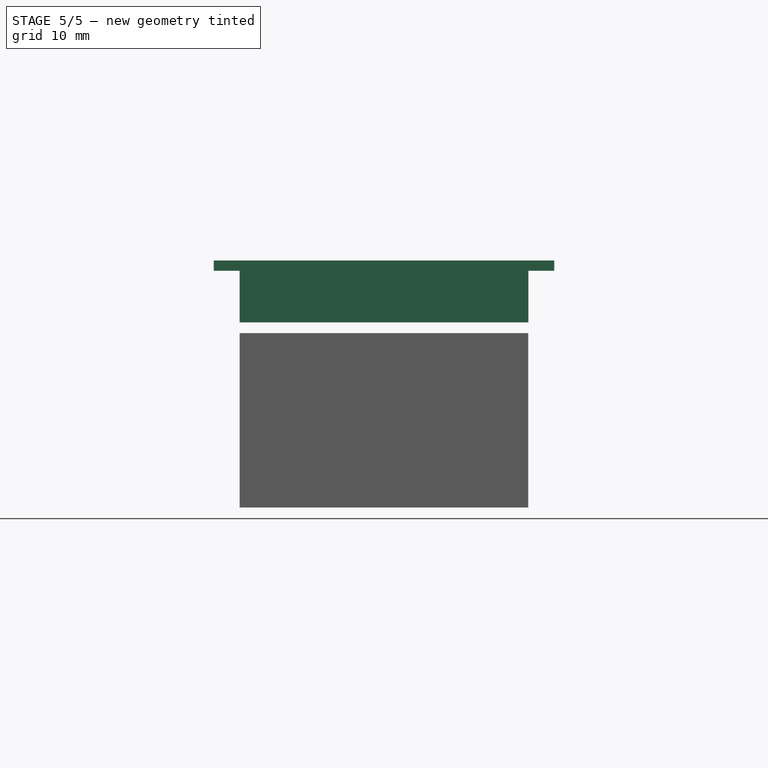
[diagram: stage 5 of 5 — front view after this stage's code; geometry added in this stage tinted green]
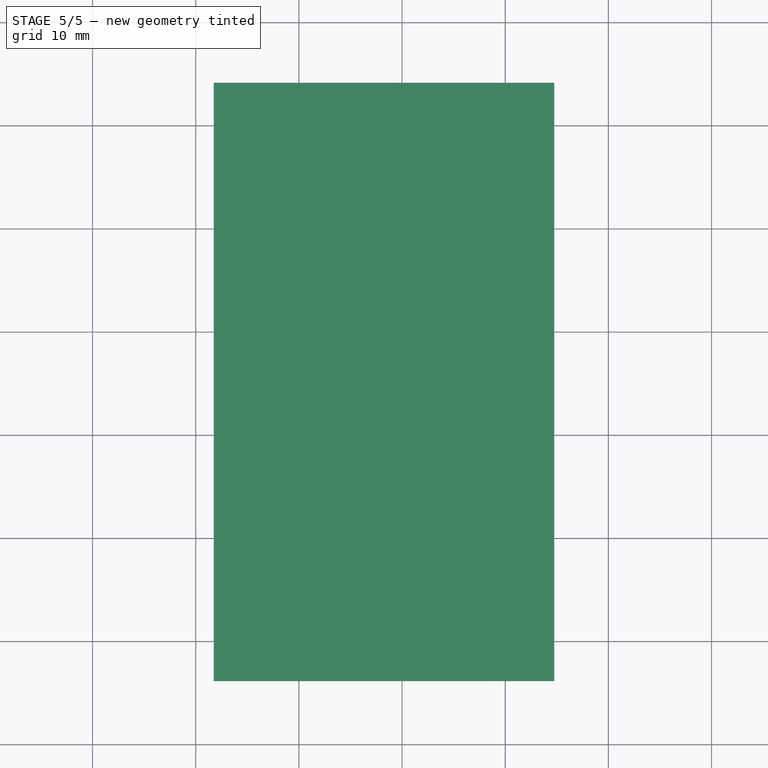
[diagram: stage 5 of 5 — top view after this stage's code; geometry added in this stage tinted green]
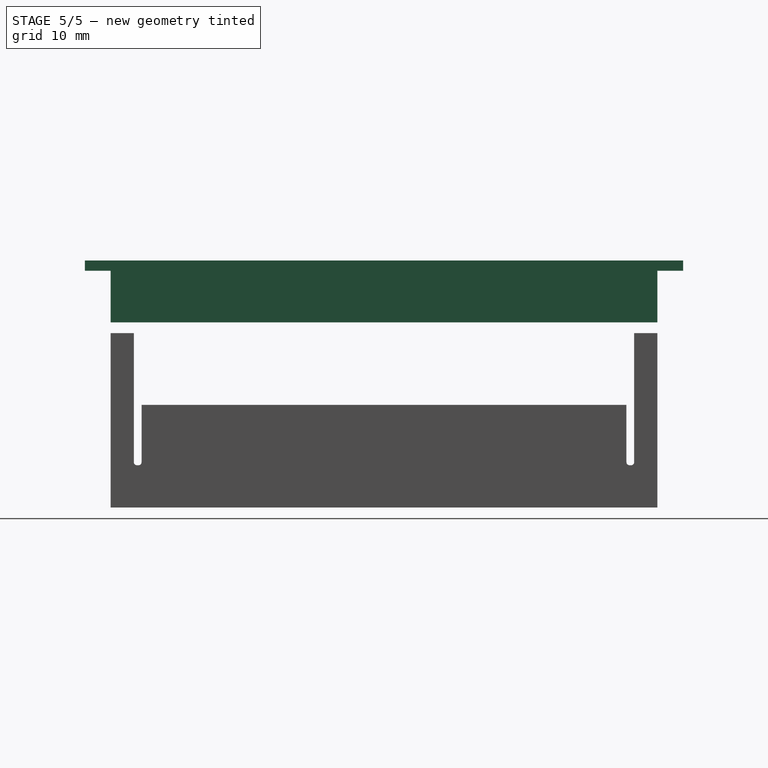
[diagram: stage 5 of 5 — right view after this stage's code; geometry added in this stage tinted green]
FEATURE [Sketcher::SketchObject] Sketch012
  ExternalGeometry = -> [Pad003]
  FullyConstrained = true
  MapMode = 5
  Placement = pos=(4.1e-15,-38.75,1.18e-14) rot=(0,-0.707107,0.707107;3.14159rad)
  Support = -> [Pad003]
  sketch-geometry (4):
    g0: LineSegment StartX=5.75 StartY=6 StartZ=0 EndX=-22.25 EndY=6 EndZ=0
    g1: LineSegment StartX=-22.25 StartY=6 StartZ=0 EndX=-22.25 EndY=5 EndZ=0
    g2: LineSegment StartX=-22.25 StartY=5 StartZ=0 EndX=5.75 EndY=5 EndZ=0
    g3: LineSegment StartX=5.75 StartY=5 StartZ=0 EndX=5.75 EndY=6 EndZ=0
  constraints (10):
    c: Coincident(g0,g1)
    c: Coincident(g1,g2)
    c: Coincident(g2,g3)
    c: Coincident(g3,g0)
    c: Horizontal(g0)
    c: Horizontal(g2)
    c: Vertical(g1)
    c: Vertical(g3)
    c: Coincident(g0,g-6)
    c: Coincident(g1,g-4)
FEATURE [PartDesign::Pad] Pad009
  BaseFeature = -> Pad003
  Direction = (1,1,1)
  Length = 3
  Length2 = 100
  Placement = pos=(0,-15.25,5.9e-15) rot=(0,0.707107,0.707107;3.14159rad)
  Profile = -> Sketch012
  Type = 0
FEATURE [Sketcher::SketchObject] Sketch013
  ExternalGeometry = -> [Pad009]
  FullyConstrained = false
  MapMode = 5
  Placement = pos=(-3.1e-15,-15.25,-12) rot=(0,1,0;3.14159rad)
  Support = -> [Pad009]
  sketch-geometry (4):
    g0: LineSegment StartX=-36.6896 StartY=-1.8e-15 StartZ=0 EndX=27.4658 EndY=-1.8e-15 EndZ=0
    g1: Circle CenterX=-8.25386 CenterY=11.75 CenterZ=0 NormalX=0 NormalY=0 NormalZ=1 AngleXU=0 Radius=3.125
    g2: LineSegment StartX=-8.25386 StartY=23.5 StartZ=0 EndX=-8.25386 EndY=-23.5 EndZ=0
    g3: Circle CenterX=-8.25386 CenterY=-11.75 CenterZ=0 NormalX=0 NormalY=0 NormalZ=1 AngleXU=0 Radius=3.125
  constraints (11):
    c: Horizontal(g0)
    c: DistanceY(g0,g-3) = 23.5
    c: PointOnObject(g2,g-3)
    c: PointOnObject(g2,g-4)
    c: Vertical(g2)
    c: DistanceX(g-4,g-4) = 5.04773
    c: DistanceX(g-4,g2) = 2.52
    c: PointOnObject(g1,g2)
    c: DistanceY(g1,g2) = 11.75
    c: Diameter(g1) = 6.25
    c: Diameter(g3) = 6.25
FEATURE [PartDesign::Pocket] Pocket001
  BaseFeature = -> Pad009
  Length = 4
  Length2 = 100
  Placement = pos=(0,-15.25,5.9e-15) rot=(0,0.707107,0.707107;3.14159rad)
  Profile = -> Sketch013
  Type = 0
FEATURE [Sketcher::SketchObject] Sketch014
  ExternalGeometry = -> [Pocket001]
  FullyConstrained = true
  MapMode = 5
  Placement = pos=(-3.7e-15,-15.25,-8) rot=(0,1,0;3.14159rad)
  Support = -> [Pocket001]
  sketch-geometry (2):
    g0: Circle CenterX=-8.25386 CenterY=11.75 CenterZ=0 NormalX=0 NormalY=0 NormalZ=1 AngleXU=0 Radius=1
    g1: Circle CenterX=-8.25386 CenterY=-11.75 CenterZ=0 NormalX=0 NormalY=0 NormalZ=1 AngleXU=0 Radius=1
  constraints (4):
    c: Coincident(g0,g-4)
    c: Coincident(g1,g-3)
    c: Diameter(g0) = 2
    c: Diameter(g1) = 2
FEATURE [PartDesign::Pocket] Pocket002
  BaseFeature = -> Pocket001
  Length = 5
  Length2 = 100
  Placement = pos=(0,-15.25,5.9e-15) rot=(0,0.707107,0.707107;3.14159rad)
  Profile = -> Sketch014
  Type = 0
FEATURE [PartDesign::Body] Body001  label="battery"
  Group = -> [ShapeBinder,DatumPlane,Sketch004,Pad002,Sketch005,Pad003,Sketch006,Sketch012,Pad009,Sketch013,Pocket001,Sketch014,Pocket002]
  Origin = -> Origin001
  Tip = -> Pocket002
FEATURE [PartDesign::ShapeBinder] ShapeBinder001
  Support = -> [Pocket002]
  TraceSupport = false
FEATURE [Sketcher::SketchObject] Sketch015
  ExternalGeometry = -> [ShapeBinder001]
  FullyConstrained = true
  MapMode = 5
  Placement = pos=(0,0,-5) rot=(1,0,0;3.14159rad)
  Support = -> [Pocket]
  sketch-geometry (2):
    g0: Circle CenterX=8.25386 CenterY=3.5 CenterZ=0 NormalX=0 NormalY=0 NormalZ=1 AngleXU=0 Radius=1
    g1: Circle CenterX=8.25386 CenterY=27 CenterZ=0 NormalX=0 NormalY=0 NormalZ=1 AngleXU=0 Radius=1
  constraints (4):
    c: Coincident(g0,g-3)
    c: Diameter(g0) = 2
    c: Coincident(g1,g-4)
    c: Diameter(g1) = 2
FEATURE [PartDesign::Pocket] Pocket003
  BaseFeature = -> Pocket
  Length = 5
  Length2 = 100
  Profile = -> Sketch015
  Type = 0
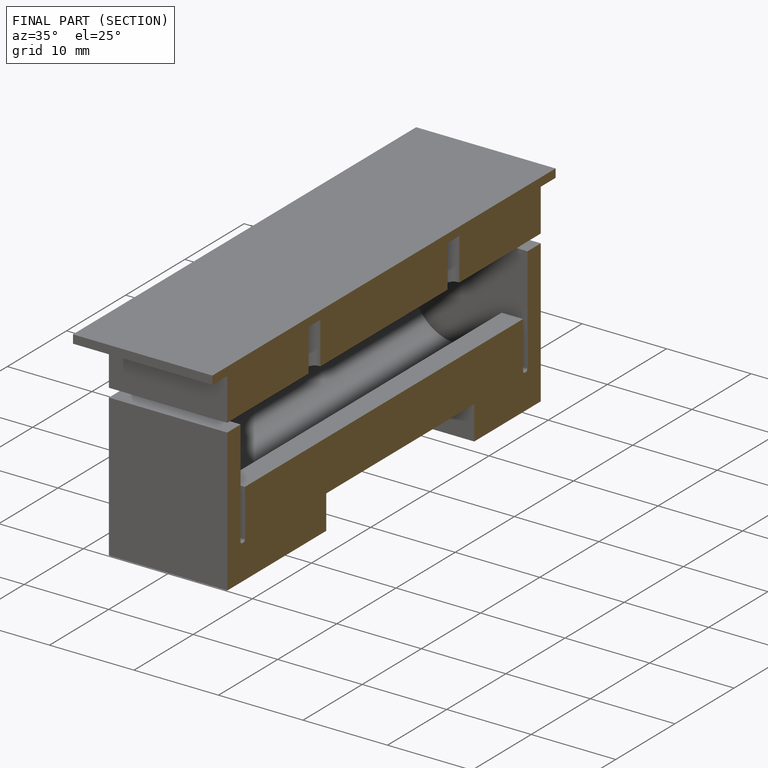
[diagram: finished part — half-section view (interior)]
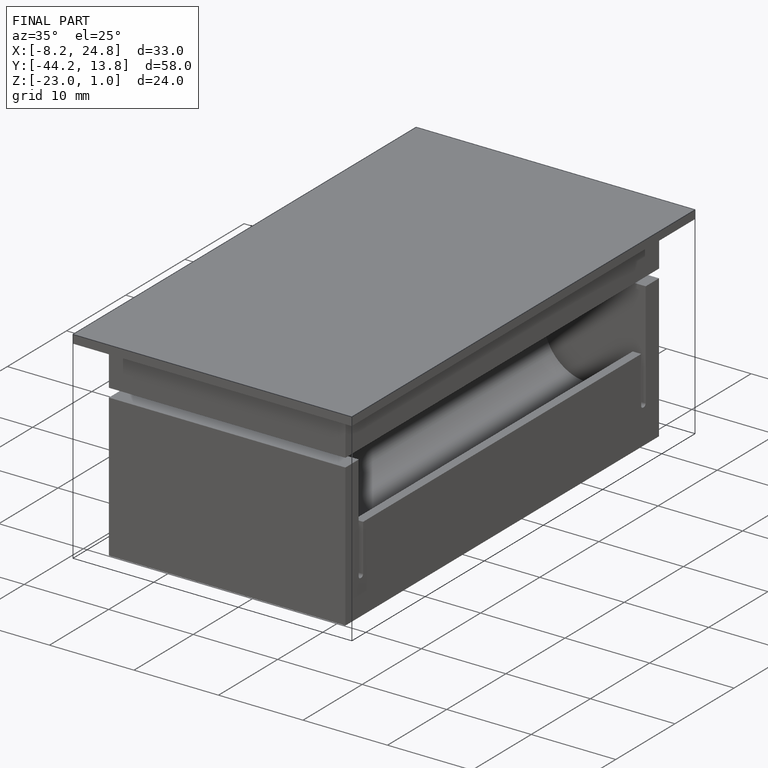
[diagram: finished part — iso view with bounding-box wireframe]
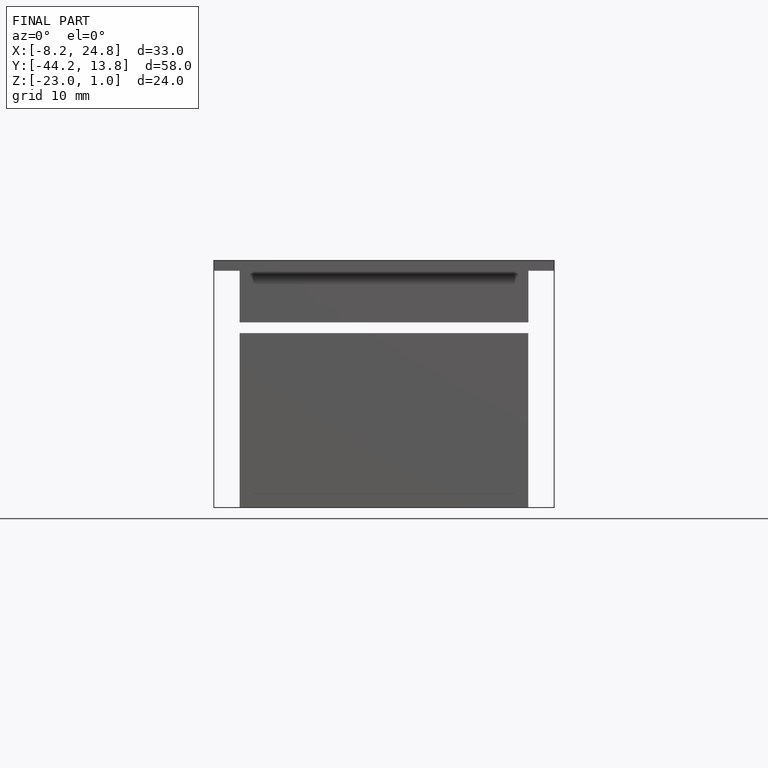
[diagram: finished part — front view with bounding-box wireframe]
